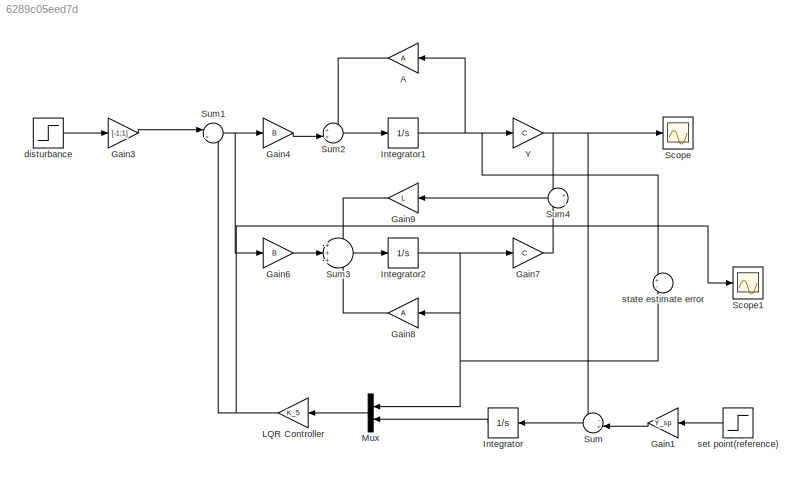
MODEL slx_6289c05eed7d
KIND model
CONFIG AbsTol = auto
CONFIG EnableMultiTasking = off
CONFIG FixedStep = auto
CONFIG MaxStep = auto
CONFIG MinStep = auto
CONFIG RelTol = 1e-3
CONFIG SampleTimeConstraint = Unconstrained
CONFIG SolverName = VariableStepAuto
CONFIG StartTime = 0.0
CONFIG StopTime = 20
BLOCK [Gain] A
  Gain = A
  Multiplication = Matrix(K*u)
  NameLocation = top
BLOCK [Gain] Gain1
  Gain = Y_sp
  Multiplication = Matrix(K*u)
  NameLocation = top
BLOCK [Gain] Gain3
  Gain = [-1;1]
  Multiplication = Matrix(K*u)
BLOCK [Gain] Gain4
  Gain = B
  Multiplication = Matrix(K*u)
BLOCK [Gain] Gain6
  Gain = B
  Multiplication = Matrix(K*u)
BLOCK [Gain] Gain7
  Gain = C
  Multiplication = Matrix(K*u)
BLOCK [Gain] Gain8
  Gain = A
  Multiplication = Matrix(K*u)
  NameLocation = top
BLOCK [Gain] Gain9
  Gain = L
  Multiplication = Matrix(K*u)
  NameLocation = top
BLOCK [Integrator] Integrator
  NameLocation = top
  Ports = [1, 1]
BLOCK [Integrator] Integrator1
  Ports = [1, 1]
BLOCK [Integrator] Integrator2
  Ports = [1, 1]
BLOCK [Gain] LQR Controller
  Gain = K_5
  Multiplication = Matrix(K*u)
  NameLocation = top
BLOCK [Mux] Mux
  DisplayOption = bar
  Inputs = 2
  NameLocation = top
  Ports = [2, 1]
BLOCK [Scope] Scope
  Floating = off
  NumInputPorts = 1
  Ports = [1]
  ScopeSpecificationString = Simulink.scopes.TimeScopeBlockCfg('CurrentConfiguration', extmgr.ConfigurationSet(extmgr.Configuration('Core','General UI',true,'FigureColor',[1 1 1]),extmgr.Configuration('Core','Source UI',true),extmgr.Configuration('Sources','WiredSimulink',true),extmgr.Configuration('Visuals','Time Domain',true,'SerializedDisplays',{struct('MinYLimReal','-0.10086','MaxYLimReal','0.89496','YLabelReal','','MinYL...<+1720ch>
BLOCK [Scope] Scope1
  Floating = off
  NumInputPorts = 1
  Ports = [1]
  ScopeSpecificationString = Simulink.scopes.TimeScopeBlockCfg('CurrentConfiguration', extmgr.ConfigurationSet(extmgr.Configuration('Core','General UI',true,'FigureColor',[1 1 1]),extmgr.Configuration('Core','Source UI',true),extmgr.Configuration('Sources','WiredSimulink',true,'DataLoggingVariableName','ScopeData1'),extmgr.Configuration('Visuals','Time Domain',true,'SerializedDisplays',{struct('MinYLimReal','-1.28724','MaxYLi...<+1428ch>
BLOCK [Sum] Sum
  Inputs = -+|
  NameLocation = top
  Ports = [2, 1]
BLOCK [Sum] Sum1
  Inputs = |+-
  Ports = [2, 1]
BLOCK [Sum] Sum2
  Inputs = ++|
  Ports = [2, 1]
BLOCK [Sum] Sum3
  Inputs = +++
  Ports = [3, 1]
BLOCK [Sum] Sum4
  Inputs = +|-
  NameLocation = top
  Ports = [2, 1]
BLOCK [Gain] Y
  Gain = C
  Multiplication = Matrix(K*u)
BLOCK [Step] disturbance
  SampleTime = 0
  Time = 10
BLOCK [Step] set point(reference)
  NameLocation = top
  SampleTime = 0
  Time = 0
BLOCK [Sum] state estimate error
  Inputs = +-
  Ports = [2, 1]
LINE A:1 -> Sum2:1
LINE Gain1:1 -> Sum:2
LINE Gain3:1 -> Sum1:1
LINE Gain4:1 -> Sum2:2
LINE Gain6:1 -> Sum3:2
LINE Gain7:1 -> Sum4:2
LINE Gain8:1 -> Sum3:3
LINE Gain9:1 -> Sum3:1
NET Integrator1:1 -> A:1, Y:1, state estimate error:1
NET Integrator2:1 -> Gain7:1, Gain8:1, Mux:1, state estimate error:2
LINE Integrator:1 -> Mux:2
NET LQR Controller:1 -> Scope1:1, Sum1:2
LINE Mux:1 -> LQR Controller:1
NET Sum1:1 -> Gain4:1, Gain6:1
LINE Sum2:1 -> Integrator1:1
LINE Sum3:1 -> Integrator2:1
LINE Sum4:1 -> Gain9:1
LINE Sum:1 -> Integrator:1
NET Y:1 -> Scope:1, Sum4:1, Sum:1
LINE disturbance:1 -> Gain3:1
LINE set point(reference):1 -> Gain1:1
note: NET lines group one-source signal fan-out (src -> all destinations, sorted); 1:1 wires keep LINE
